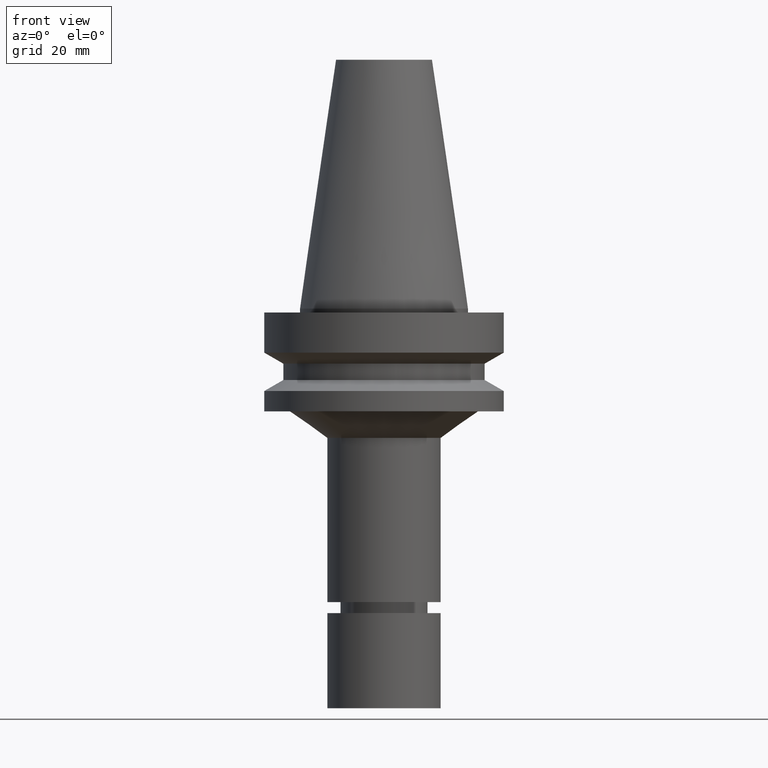
[diagram: clean part render]
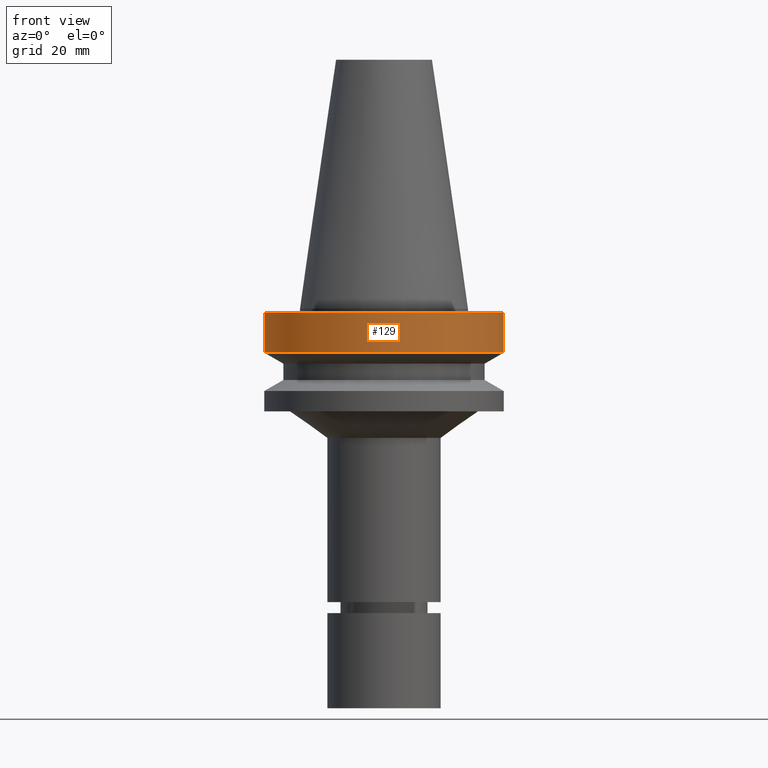
[diagram: same view with one face highlighted and labeled with its STEP entity id]
A machine part, front view. The second image highlights one B-rep face of the part: STEP entity #129.
In plain terms, the highlighted cylindrical surface (bore or boss wall) has radius 31.5 mm, axis along (0, -0, -1).
Its self-contained STEP definition (entity closure, byte-faithful):
#110=EDGE_CURVE('Unnamed[1]',#254,#254,#255,.T.);
#129=ADVANCED_FACE('Unnamed[1]',(#283,#284),#285,.T.);
#164=EDGE_CURVE('Unnamed[1]',#337,#337,#338,.T.);
#254=VERTEX_POINT('',#443);
#255=CIRCLE('',#444,31.4999999999996);
#283=FACE_BOUND('',#479,.T.);
#284=FACE_BOUND('',#480,.T.);
#285=CYLINDRICAL_SURFACE('',#481,31.5);
#337=VERTEX_POINT('',#545);
#338=CIRCLE('',#546,31.5000000000003);
#443=CARTESIAN_POINT('',(6.12323399573568E-017,31.4999999999997,-0.999999999999825));
#444=AXIS2_PLACEMENT_3D('',#637,#638,#639);
#479=EDGE_LOOP('',(#670));
#480=EDGE_LOOP('',(#671));
#481=AXIS2_PLACEMENT_3D('',#672,#673,#674);
#545=CARTESIAN_POINT('',(7.08182973902924E-016,31.5000000000004,-11.5655056526664));
#546=AXIS2_PLACEMENT_3D('',#731,#732,#733);
#637=CARTESIAN_POINT('',(6.12323399573572E-017,7.50136925164251E-014,-0.999999999999829));
#638=DIRECTION('',(6.12323399573677E-017,-3.19681415020244E-017,-1.0));
#639=DIRECTION('',(-2.86966862251183E-033,1.0,-3.19681415020244E-017));
#670=ORIENTED_EDGE('',*,*,#164,.F.);
#671=ORIENTED_EDGE('',*,*,#110,.T.);
#672=CARTESIAN_POINT('',(3.84707656930141E-016,7.48448127265527E-014,-6.28275282633309));
#673=DIRECTION('',(6.12323399573677E-017,-3.19681415020243E-017,-1.0));
#674=DIRECTION('',(-2.86966862251183E-033,1.0,-3.19681415020243E-017));
#731=CARTESIAN_POINT('',(7.08182973902924E-016,7.46759329366802E-014,-11.5655056526664));
#732=DIRECTION('',(6.12323399573677E-017,-3.19681415020243E-017,-1.0));
#733=DIRECTION('',(-2.86966862251183E-033,1.0,-3.19681415020243E-017));